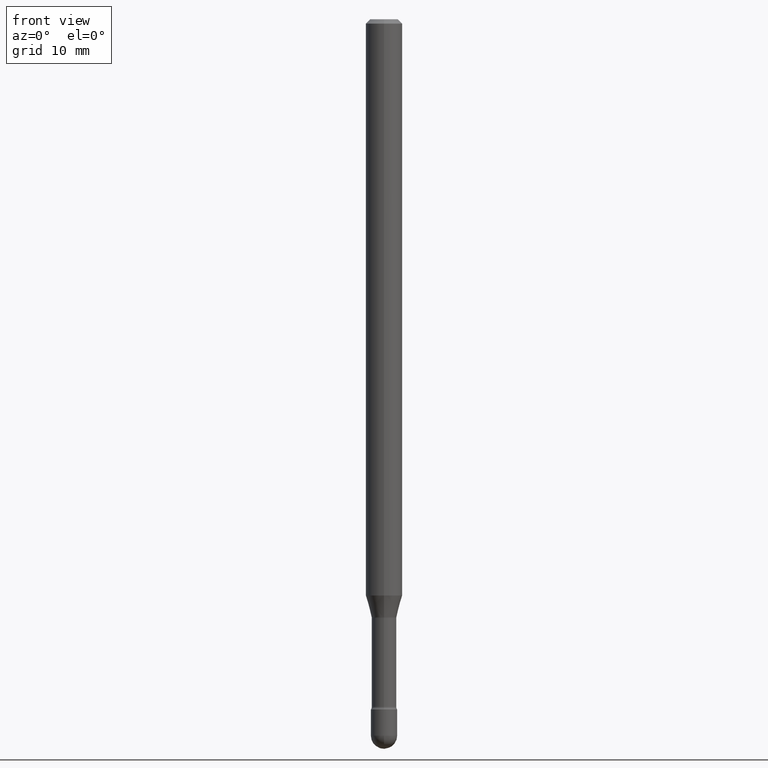
[diagram: clean part render]
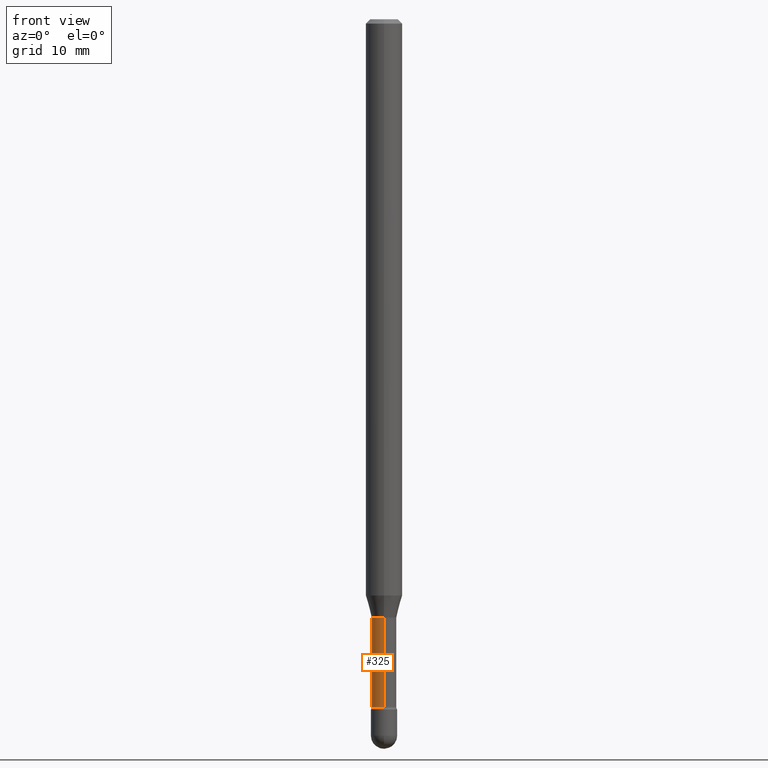
[diagram: same view with one face highlighted and labeled with its STEP entity id]
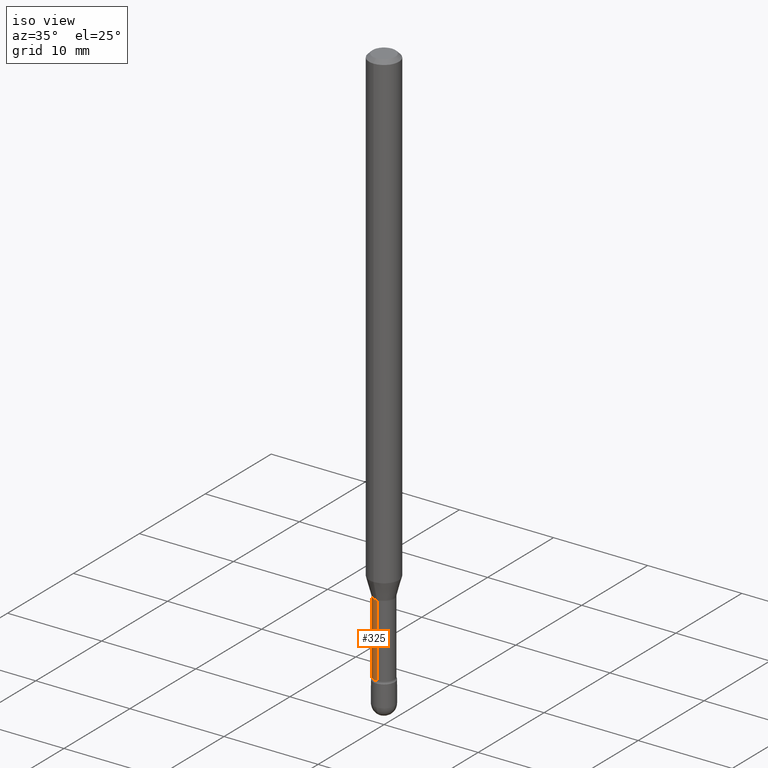
[diagram: same view with one face highlighted and labeled with its STEP entity id]
A machine part, front view. The second image highlights one B-rep face of the part: STEP entity #325.
A second angle (iso view) of the same face is appended — the face is thin or edge-on in the first view.
In plain terms, the highlighted cylindrical surface (edge-blend (fillet) strip) has radius 1.0744 mm, axis along (-0, 0, 1).
Its self-contained STEP definition (entity closure, byte-faithful):
#1 = CARTESIAN_POINT ( 'NONE',  ( 5.017931694619254033E-29, -7.164587255726968093E-15, -2.051974787463811456 ) ) ;
#8 = EDGE_CURVE ( 'NONE', #347, #391, #183, .T. ) ;
#13 = DIRECTION ( 'NONE',  ( -2.445415862453792294E-29, 3.491557157279800917E-15, 1.000000000000000000 ) ) ;
#30 = EDGE_CURVE ( 'NONE', #243, #347, #314, .T. ) ;
#51 = CARTESIAN_POINT ( 'NONE',  ( 3.101519041593415244E-16, 0.04229999999999178167, -2.356414547187247965 ) ) ;
#77 = DIRECTION ( 'NONE',  ( -2.445415862453792294E-29, 3.491557157279800917E-15, 1.000000000000000000 ) ) ;
#96 = CARTESIAN_POINT ( 'NONE',  ( -2.953793212660715159E-16, -0.04230000000000824073, -2.356414547187247077 ) ) ;
#103 = AXIS2_PLACEMENT_3D ( 'NONE', #407, #187, #242 ) ;
#132 = VERTEX_POINT ( 'NONE', #184 ) ;
#146 = DIRECTION ( 'NONE',  ( -6.982962677686265133E-15, -1.000000000000000000, 6.458269488567996591E-15 ) ) ;
#147 = CIRCLE ( 'NONE', #155, 0.04230000000000001120 ) ;
#152 = EDGE_CURVE ( 'NONE', #132, #391, #147, .T. ) ;
#155 = AXIS2_PLACEMENT_3D ( 'NONE', #1, #545, #146 ) ;
#183 = LINE ( 'NONE', #455, #368 ) ;
#184 = CARTESIAN_POINT ( 'NONE',  ( 3.005595772265799958E-16, 0.04229999999999284332, -2.051974787463811456 ) ) ;
#187 = DIRECTION ( 'NONE',  ( -2.445415862453792294E-29, 3.491557157279800522E-15, 1.000000000000000000 ) ) ;
#220 = DIRECTION ( 'NONE',  ( -6.982962677686265133E-15, -1.000000000000000000, 3.491557157279800522E-15 ) ) ;
#241 = VECTOR ( 'NONE', #77, 39.37007874015748143 ) ;
#242 = DIRECTION ( 'NONE',  ( -6.982962677686265133E-15, -1.000000000000000000, 6.458269488567996591E-15 ) ) ;
#243 = VERTEX_POINT ( 'NONE', #51 ) ;
#256 = AXIS2_PLACEMENT_3D ( 'NONE', #484, #532, #220 ) ;
#259 = ORIENTED_EDGE ( 'NONE', *, *, #8, .T. ) ;
#290 = CARTESIAN_POINT ( 'NONE',  ( -2.953793212660789608E-16, -0.04230000000000717214, -2.051974787463811012 ) ) ;
#314 = CIRCLE ( 'NONE', #103, 0.04230000000000001120 ) ;
#315 = CYLINDRICAL_SURFACE ( 'NONE', #256, 0.04230000000000001120 ) ;
#325 = ADVANCED_FACE ( 'NONE', ( #490 ), #315, .T. ) ;
#347 = VERTEX_POINT ( 'NONE', #96 ) ;
#368 = VECTOR ( 'NONE', #13, 39.37007874015748143 ) ;
#383 = ORIENTED_EDGE ( 'NONE', *, *, #30, .T. ) ;
#391 = VERTEX_POINT ( 'NONE', #290 ) ;
#407 = CARTESIAN_POINT ( 'NONE',  ( 5.762413512208565437E-29, -8.227556077749873507E-15, -2.356414547187247521 ) ) ;
#448 = ORIENTED_EDGE ( 'NONE', *, *, #152, .F. ) ;
#455 = CARTESIAN_POINT ( 'NONE',  ( -2.953793212661291028E-16, -0.04230000000000001120, 6.257662666441816574E-16 ) ) ;
#475 = LINE ( 'NONE', #557, #241 ) ;
#484 = CARTESIAN_POINT ( 'NONE',  ( -1.169113584055446105E-44, 1.669184350826100908E-30, 4.780733988912460139E-16 ) ) ;
#489 = EDGE_CURVE ( 'NONE', #243, #132, #475, .T. ) ;
#490 = FACE_OUTER_BOUND ( 'NONE', #513, .T. ) ;
#505 = ORIENTED_EDGE ( 'NONE', *, *, #489, .F. ) ;
#513 = EDGE_LOOP ( 'NONE', ( #505, #383, #259, #448 ) ) ;
#532 = DIRECTION ( 'NONE',  ( -2.445415862453792294E-29, 3.491557157279800522E-15, 1.000000000000000000 ) ) ;
#545 = DIRECTION ( 'NONE',  ( -2.445415862453792294E-29, 3.491557157279800522E-15, 1.000000000000000000 ) ) ;
#557 = CARTESIAN_POINT ( 'NONE',  ( 3.005595772265223596E-16, 0.04230000000000001120, 3.303805311383104691E-16 ) ) ;